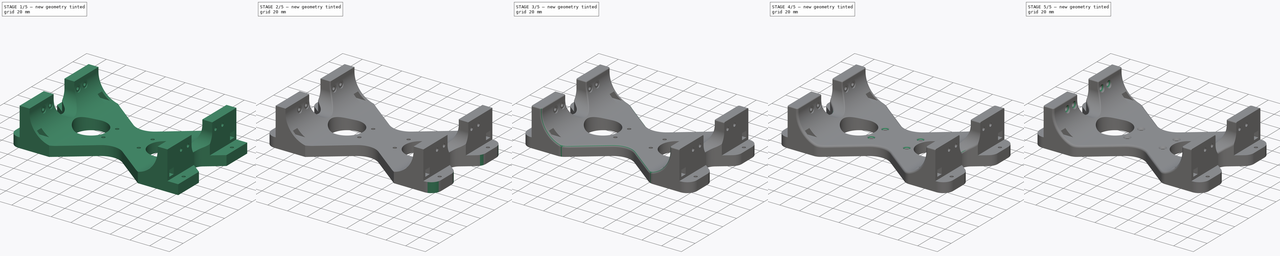
[diagram: build sequence overview — one tinted view per stage of 5, left to right]
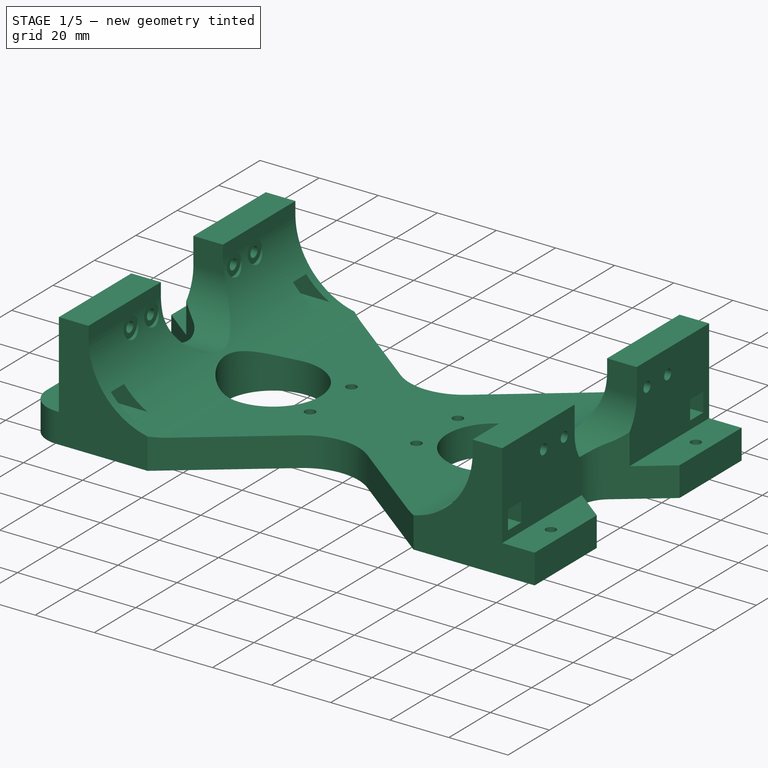
[diagram: stage 1 of 5 — iso view after this stage's code; geometry added in this stage tinted green]
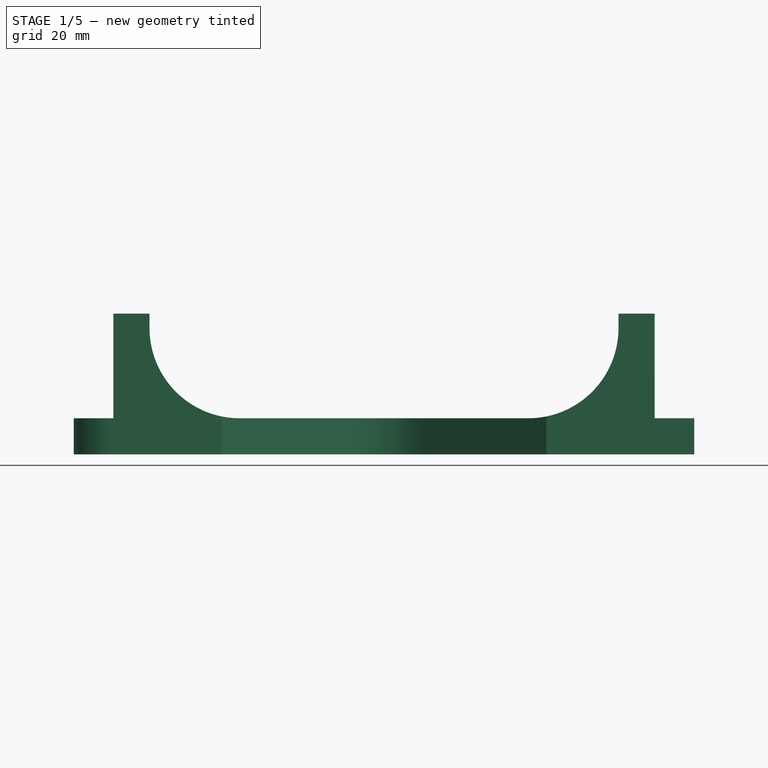
[diagram: stage 1 of 5 — front view after this stage's code; geometry added in this stage tinted green]
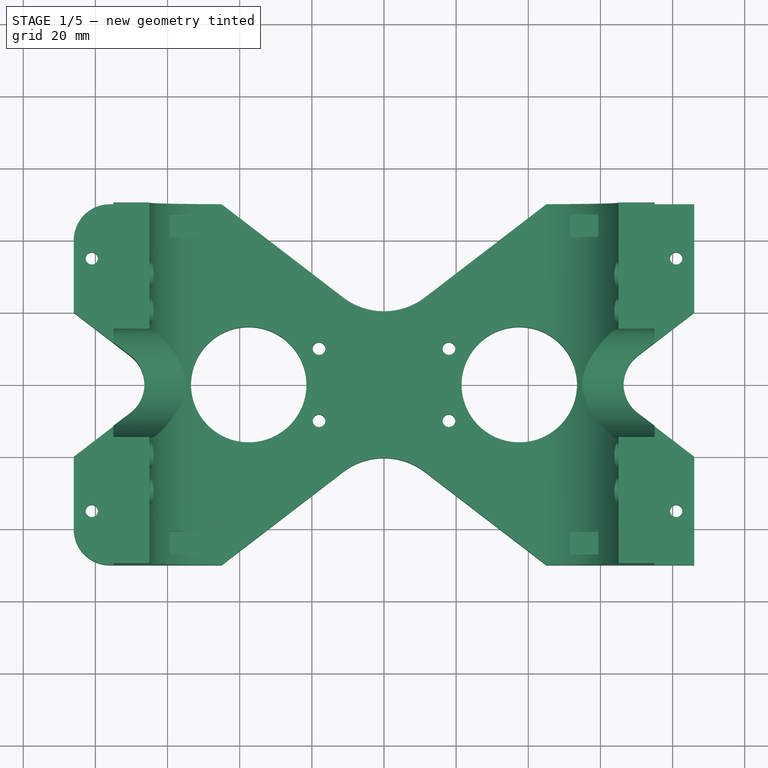
[diagram: stage 1 of 5 — top view after this stage's code; geometry added in this stage tinted green]
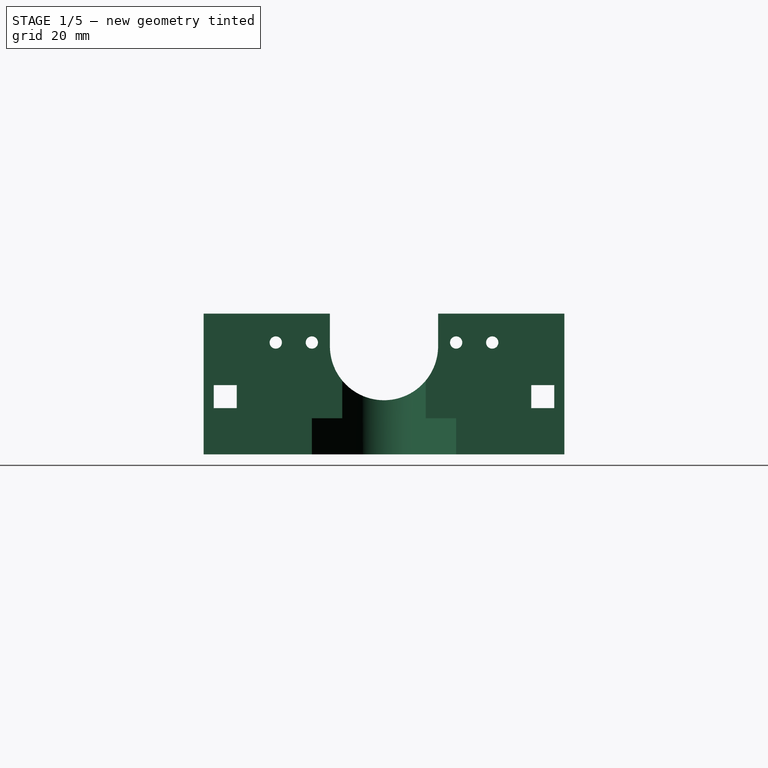
[diagram: stage 1 of 5 — right view after this stage's code; geometry added in this stage tinted green]
FCSTD DOCUMENT  (FreeCAD 0.16R6706 (Git))
Label: Pelvis
License: All rights reserved
LicenseURL: http://en.wikipedia.org/wiki/All_rights_reserved
objects: PartDesign::Fillet×22, PartDesign::Chamfer×16, Sketcher::SketchObject×7, PartDesign::Pocket×6, PartDesign::Pad×1
note: 59 computed .brp shape members not serialized (recipe doc carries the construction recipe); baked Part::Feature solids carry a one-line shape summary decoded from their .brp

FEATURE [Sketcher::SketchObject] Sketch
  sketch-geometry (41):
    g0: LineSegment StartX=-86 StartY=50 StartZ=0 EndX=-45 EndY=50 EndZ=0
    g1: LineSegment StartX=86 StartY=-50 StartZ=0 EndX=45 EndY=-50 EndZ=0
    g2: LineSegment StartX=-86 StartY=-50 StartZ=0 EndX=-86 EndY=-20 EndZ=0
    g3: LineSegment [constr] StartX=-55.2 StartY=35.2 StartZ=0 EndX=-44.8 EndY=35.2 EndZ=0
    g4: LineSegment [constr] StartX=-44.8 StartY=35.2 StartZ=0 EndX=-44.8 EndY=24.8 EndZ=0
    g5: LineSegment [constr] StartX=-44.8 StartY=24.8 StartZ=0 EndX=-55.2 EndY=24.8 EndZ=0
    g6: LineSegment [constr] StartX=-55.2 StartY=24.8 StartZ=0 EndX=-55.2 EndY=35.2 EndZ=0
    g7: LineSegment [constr] StartX=44.8 StartY=35.2 StartZ=0 EndX=55.2 EndY=35.2 EndZ=0
    g8: LineSegment [constr] StartX=55.2 StartY=35.2 StartZ=0 EndX=55.2 EndY=24.8 EndZ=0
    g9: LineSegment [constr] StartX=55.2 StartY=24.8 StartZ=0 EndX=44.8 EndY=24.8 EndZ=0
    g10: LineSegment [constr] StartX=44.8 StartY=24.8 StartZ=0 EndX=44.8 EndY=35.2 EndZ=0
    g11: LineSegment [constr] StartX=-55.2 StartY=-24.8 StartZ=0 EndX=-44.8 EndY=-24.8 EndZ=0
    g12: LineSegment [constr] StartX=-44.8 StartY=-24.8 StartZ=0 EndX=-44.8 EndY=-35.2 EndZ=0
    g13: LineSegment [constr] StartX=-44.8 StartY=-35.2 StartZ=0 EndX=-55.2 EndY=-35.2 EndZ=0
    g14: LineSegment [constr] StartX=-55.2 StartY=-35.2 StartZ=0 EndX=-55.2 EndY=-24.8 EndZ=0
    g15: LineSegment [constr] StartX=44.8 StartY=-24.8 StartZ=0 EndX=55.2 EndY=-24.8 EndZ=0
    g16: LineSegment [constr] StartX=55.2 StartY=-24.8 StartZ=0 EndX=55.2 EndY=-35.2 EndZ=0
    g17: LineSegment [constr] StartX=55.2 StartY=-35.2 StartZ=0 EndX=44.8 EndY=-35.2 EndZ=0
    g18: LineSegment [constr] StartX=44.8 StartY=-35.2 StartZ=0 EndX=44.8 EndY=-24.8 EndZ=0
    g19: GeomPoint [constr] X=50 Y=30 Z=0
    g20: GeomPoint [constr] X=-50 Y=30 Z=0
    g21: GeomPoint [constr] X=-50 Y=-30 Z=0
    g22: LineSegment StartX=-45 StartY=50 StartZ=0 EndX=-11.3641 EndY=24.1901 EndZ=0
    g23: LineSegment StartX=11.3641 StartY=24.1901 StartZ=0 EndX=45 EndY=50 EndZ=0
    g24: LineSegment StartX=-45 StartY=-50 StartZ=0 EndX=-11.3641 EndY=-24.1901 EndZ=0
    g25: LineSegment StartX=11.3641 StartY=-24.1901 StartZ=0 EndX=45 EndY=-50 EndZ=0
    g26: LineSegment StartX=-45 StartY=-50 StartZ=0 EndX=-86 EndY=-50 EndZ=0
    g27: LineSegment StartX=45 StartY=50 StartZ=0 EndX=86 EndY=50 EndZ=0
    g28: LineSegment StartX=-86 StartY=20 StartZ=0 EndX=-70.3614 EndY=8 EndZ=0
    g29: LineSegment StartX=-70.3614 StartY=-8 StartZ=0 EndX=-86 EndY=-20 EndZ=0
    g30: LineSegment StartX=86 StartY=20 StartZ=0 EndX=70.3614 EndY=8 EndZ=0
    g31: LineSegment StartX=70.3614 StartY=-8 StartZ=0 EndX=86 EndY=-20 EndZ=0
    g32: LineSegment StartX=-86 StartY=50 StartZ=0 EndX=-86 EndY=20 EndZ=0
    g33: LineSegment StartX=86 StartY=50 StartZ=0 EndX=86 EndY=20 EndZ=0
    g34: LineSegment StartX=86 StartY=-20 StartZ=0 EndX=86 EndY=-50 EndZ=0
    g35: Circle CenterX=-37.5 CenterY=0 CenterZ=0 NormalX=0 NormalY=0 NormalZ=1 Radius=16
    g36: Circle CenterX=37.5 CenterY=0 CenterZ=0 NormalX=0 NormalY=0 NormalZ=1 Radius=16
    g37: ArcOfCircle CenterX=0 CenterY=39 CenterZ=0 NormalX=0 NormalY=0 NormalZ=1 Radius=18.6675 StartAngle=4.05789 EndAngle=5.36689
    g38: ArcOfCircle CenterX=-76.5 CenterY=0 CenterZ=0 NormalX=0 NormalY=0 NormalZ=1 Radius=10.0838 StartAngle=5.36689 EndAngle=7.19948
    g39: ArcOfCircle CenterX=76.5 CenterY=0 CenterZ=0 NormalX=0 NormalY=0 NormalZ=1 Radius=10.0838 StartAngle=2.2253 EndAngle=4.05789
    g40: ArcOfCircle CenterX=0 CenterY=-39 CenterZ=0 NormalX=0 NormalY=0 NormalZ=1 Radius=18.6675 StartAngle=0.916296 EndAngle=2.2253
  constraints (102):
    c: Coincident(g26,g2)
    c: Horizontal(g0)
    c: Horizontal(g1)
    c: Vertical(g2)
    c: Symmetric(g26,g27,g-1)
    c: DistanceX(g0,g27) = 172
    c: DistanceY(g1,g27) = 100
    c: Coincident(g3,g4)
    c: Coincident(g4,g5)
    c: Coincident(g5,g6)
    c: Coincident(g6,g3)
    c: Horizontal(g3)
    c: Horizontal(g5)
    c: Vertical(g4)
    c: Vertical(g6)
    c: Coincident(g7,g8)
    c: Coincident(g8,g9)
    c: Coincident(g9,g10)
    c: Coincident(g10,g7)
    c: Horizontal(g7)
    c: Horizontal(g9)
    c: Vertical(g8)
    c: Vertical(g10)
    c: Coincident(g11,g12)
    c: Coincident(g12,g13)
    c: Coincident(g13,g14)
    c: Coincident(g14,g11)
    c: Horizontal(g11)
    c: Horizontal(g13)
    c: Vertical(g12)
    c: Vertical(g14)
    c: Coincident(g15,g16)
    c: Coincident(g16,g17)
    c: Coincident(g17,g18)
    c: Coincident(g18,g15)
    c: Horizontal(g15)
    c: Horizontal(g17)
    c: Vertical(g16)
    c: Vertical(g18)
    c: Symmetric(g11,g4,g-1)
    c: Symmetric(g13,g3,g-1)
    c: Equal(g11,g12)
    c: Symmetric(g9,g15,g-1)
    c: Symmetric(g16,g7,g-1)
    c: Equal(g15,g18)
    c: Equal(g15,g11)
    c: Symmetric(g9,g4,g-2)
    c: Symmetric(g9,g7,g19)
    c: DistanceY(g12,g12) = 10.4
    c: Symmetric(g3,g5,g20)
    c: Symmetric(g13,g11,g21)
    c: DistanceX(g20,g19) = 100
    c: DistanceY(g21,g20) = 60
    c: Coincident(g1,g25)
    c: Coincident(g26,g24)
    c: Tangent(g1,g26)
    c: Coincident(g0,g22)
    c: Coincident(g27,g23)
    c: Tangent(g0,g27)
    c: Symmetric(g0,g24,g-1)
    c: Symmetric(g24,g1,g-2)
    c: Symmetric(g0,g23,g-2)
    c: DistanceX(g24,g1) = 90
    c: Coincident(g2,g29)
    c: Coincident(g32,g0)
    c: Coincident(g28,g32)
    c: Coincident(g33,g27)
    c: Coincident(g33,g30)
    c: Vertical(g33)
    c: Coincident(g34,g31)
    c: Coincident(g34,g1)
    c: Vertical(g34)
    c: Symmetric(g31,g30,g-1)
    c: Vertical(g32)
    c: Symmetric(g28,g2,g-1)
    c: Symmetric(g30,g28,g-2)
    c: Parallel(g22,g28)
    c: DistanceY(g2,g28) = 40
    c: PointOnObject(g35,g-1)
    c: PointOnObject(g36,g-1)
    c: Radius(g35) = 16
    c: Equal(g35,g36)
    c: Symmetric(g35,g36,g-1)
    c: DistanceX(g35,g36) = 75
    c: Tangent(g23,g37) = -1.5708
    c: Tangent(g22,g37) = -1.5708
    c: Tangent(g28,g38) = 1.5708
    c: Tangent(g29,g38) = 1.5708
    c: Tangent(g30,g39) = -1.5708
    c: Tangent(g31,g39) = -1.5708
    c: Tangent(g25,g40) = 1.5708
    c: Tangent(g24,g40) = 1.5708
    c: Symmetric(g40,g37,g-1)
    c: Symmetric(g39,g38,g-2)
    c: Symmetric(g29,g28,g-1)
    c: Symmetric(g22,g23,g-2)
    c: DistanceX(g38,g39) = 153
    c: DistanceY(g40,g37) = 78
    c: DistanceY(g29,g28) = 16
    c: Symmetric(g31,g29,g-2)
    c: Symmetric(g30,g28,g-2)
    c: Symmetric(g23,g25,g-1)
FEATURE [PartDesign::Pad] Pad
  Length = 39
  Length2 = 100
  Sketch = -> Sketch
  Type = 0
FEATURE [Sketcher::SketchObject] Sketch001
  Placement = pos=(-86,0,0) rot=(0.57735,-0.57735,-0.57735;2.0944rad)
  Support = -> Pad [Face1]
  sketch-geometry (19):
    g0: LineSegment StartX=-47.2 StartY=19.2 StartZ=0 EndX=-40.8 EndY=19.2 EndZ=0
    g1: LineSegment StartX=-40.8 StartY=19.2 StartZ=0 EndX=-40.8 EndY=12.8 EndZ=0
    g2: LineSegment StartX=-40.8 StartY=12.8 StartZ=0 EndX=-47.2 EndY=12.8 EndZ=0
    g3: LineSegment StartX=-47.2 StartY=12.8 StartZ=0 EndX=-47.2 EndY=19.2 EndZ=0
    g4: LineSegment StartX=40.8 StartY=19.2 StartZ=0 EndX=47.2 EndY=19.2 EndZ=0
    g5: LineSegment StartX=47.2 StartY=19.2 StartZ=0 EndX=47.2 EndY=12.8 EndZ=0
    g6: LineSegment StartX=47.2 StartY=12.8 StartZ=0 EndX=40.8 EndY=12.8 EndZ=0
    g7: LineSegment StartX=40.8 StartY=12.8 StartZ=0 EndX=40.8 EndY=19.2 EndZ=0
    g8: GeomPoint [constr] X=-44 Y=16 Z=0
    g9: GeomPoint [constr] X=44 Y=16 Z=0
    g10: Circle CenterX=-30 CenterY=31 CenterZ=0 NormalX=0 NormalY=0 NormalZ=1 Radius=1.7
    g11: Circle CenterX=30 CenterY=31 CenterZ=0 NormalX=0 NormalY=0 NormalZ=1 Radius=1.7
    g12: Circle CenterX=20 CenterY=31 CenterZ=0 NormalX=0 NormalY=0 NormalZ=1 Radius=1.7
    g13: Circle CenterX=-20 CenterY=31 CenterZ=0 NormalX=0 NormalY=0 NormalZ=1 Radius=1.7
    g14: LineSegment [constr] StartX=-30 StartY=31 StartZ=0 EndX=30 EndY=31 EndZ=0
    g15: ArcOfCircle CenterX=0 CenterY=60 CenterZ=0 NormalX=0 NormalY=0 NormalZ=1 Radius=15 StartAngle=0 EndAngle=3.14159
    g16: ArcOfCircle CenterX=0 CenterY=30 CenterZ=0 NormalX=0 NormalY=0 NormalZ=1 Radius=15 StartAngle=3.14159 EndAngle=6.28319
    g17: LineSegment StartX=-15 StartY=60 StartZ=0 EndX=-15 EndY=30 EndZ=0
    g18: LineSegment StartX=15 StartY=60 StartZ=0 EndX=15 EndY=30 EndZ=0
  constraints (48):
    c: Coincident(g0,g1)
    c: Coincident(g1,g2)
    c: Coincident(g2,g3)
    c: Coincident(g3,g0)
    c: Horizontal(g0)
    c: Horizontal(g2)
    c: Vertical(g1)
    c: Vertical(g3)
    c: Coincident(g4,g5)
    c: Coincident(g5,g6)
    c: Coincident(g6,g7)
    c: Coincident(g7,g4)
    c: Horizontal(g4)
    c: Horizontal(g6)
    c: Vertical(g5)
    c: Vertical(g7)
    c: Symmetric(g4,g0,g-2)
    c: Symmetric(g6,g1,g-2)
    c: Equal(g7,g4)
    c: DistanceY(g5,g5) = 6.4
    c: Symmetric(g2,g0,g8)
    c: Symmetric(g4,g6,g9)
    c: DistanceX(g8,g9) = 88
    c: DistanceY(g-1,g8) = 16
    c: Radius(g10) = 1.7
    c: Equal(g10,g13)
    c: Equal(g10,g12)
    c: Equal(g10,g11)
    c: Coincident(g14,g11)
    c: Horizontal(g14)
    c: PointOnObject(g12,g14)
    c: PointOnObject(g13,g14)
    c: Coincident(g10,g14)
    c: Symmetric(g13,g12,g-2)
    c: DistanceX(g13,g12) = 40
    c: DistanceX(g10,g11) = 60
    c: Symmetric(g10,g11,g-2)
    c: DistanceY(g8,g10) = 15
    c: Tangent(g15,g18) = 1.5708
    c: Tangent(g15,g17) = -1.5708
    c: Tangent(g17,g16) = -1.5708
    c: Tangent(g18,g16) = 1.5708
    c: Vertical(g17)
    c: Equal(g15,g16)
    c: PointOnObject(g16,g-2)
    c: DistanceY(g-1,g16) = 30
    c: DistanceX(g16,g16) = 30
    c: DistanceY(g16,g15) = 30
FEATURE [PartDesign::Pocket] Pocket
  Length = 5
  Sketch = -> Sketch001
  Type = 1
FEATURE [Sketcher::SketchObject] Sketch002
  Placement = pos=(0,-50,0) rot=(1,0,0;1.5708rad)
  Support = -> Pocket [Face25]
  sketch-geometry (14):
    g0: ArcOfCircle CenterX=-40 CenterY=35 CenterZ=0 NormalX=0 NormalY=0 NormalZ=1 Radius=25 StartAngle=3.14159 EndAngle=4.71239
    g1: ArcOfCircle CenterX=40 CenterY=35 CenterZ=0 NormalX=0 NormalY=0 NormalZ=1 Radius=25 StartAngle=4.71239 EndAngle=6.28318
    g2: LineSegment StartX=-40 StartY=10 StartZ=0 EndX=40 EndY=10 EndZ=0
    g3: LineSegment StartX=-65 StartY=35 StartZ=0 EndX=-65 EndY=40 EndZ=0
    g4: LineSegment StartX=-65 StartY=40 StartZ=0 EndX=65 EndY=40 EndZ=0
    g5: LineSegment StartX=65 StartY=40 StartZ=0 EndX=65 EndY=34.9999 EndZ=0
    g6: LineSegment StartX=-100 StartY=45 StartZ=0 EndX=-75 EndY=45 EndZ=0
    g7: LineSegment StartX=-75 StartY=45 StartZ=0 EndX=-75 EndY=10 EndZ=0
    g8: LineSegment StartX=-75 StartY=10 StartZ=0 EndX=-100 EndY=10 EndZ=0
    g9: LineSegment StartX=-100 StartY=10 StartZ=0 EndX=-100 EndY=45 EndZ=0
    g10: LineSegment StartX=75 StartY=45 StartZ=0 EndX=100 EndY=45 EndZ=0
    g11: LineSegment StartX=100 StartY=45 StartZ=0 EndX=100 EndY=10 EndZ=0
    g12: LineSegment StartX=100 StartY=10 StartZ=0 EndX=75 EndY=10 EndZ=0
    g13: LineSegment StartX=75 StartY=10 StartZ=0 EndX=75 EndY=45 EndZ=0
  constraints (39):
    c: Tangent(g0,g2) = -1.5708
    c: Tangent(g2,g1) = -1.5708
    c: Horizontal(g2)
    c: Equal(g0,g1)
    c: DistanceY(g-1,g1) = 10
    c: Symmetric(g0,g1,g-2)
    c: Tangent(g0,g3) = 1.5708
    c: Coincident(g3,g4)
    c: Horizontal(g4)
    c: Coincident(g4,g5)
    c: Coincident(g5,g1)
    c: Vertical(g3)
    c: Vertical(g5)
    c: DistanceX(g4,g4) = 130
    c: Tangent(g1,g5)
    c: DistanceY(g-1,g3) = 40
    c: DistanceY(g0,g3) = 5
    c: Coincident(g6,g7)
    c: Coincident(g7,g8)
    c: Coincident(g8,g9)
    c: Coincident(g9,g6)
    c: Horizontal(g6)
    c: Horizontal(g8)
    c: Vertical(g7)
    c: Vertical(g9)
    c: Coincident(g10,g11)
    c: Coincident(g11,g12)
    c: Coincident(g12,g13)
    c: Coincident(g13,g10)
    c: Horizontal(g10)
    c: Horizontal(g12)
    c: Vertical(g11)
    c: Vertical(g13)
    c: Symmetric(g7,g12,g-2)
    c: Symmetric(g6,g10,g-2)
    c: DistanceY(g-1,g7) = 10
    c: DistanceX(g6,g0) = 10
    c: DistanceY(g8,g6) = 35
    c: DistanceX(g6,g6) = 25
FEATURE [PartDesign::Pocket] Pocket001
  Length = 100
  Sketch = -> Sketch002
  Type = 0
FEATURE [Sketcher::SketchObject] Sketch003
  Placement = pos=(0,0,10) rot=(0,0,1;0rad)
  Support = -> Pocket001 [Face30]
  sketch-geometry (8):
    g0: LineSegment [constr] StartX=-81 StartY=35 StartZ=0 EndX=81 EndY=35 EndZ=0
    g1: LineSegment [constr] StartX=81 StartY=35 StartZ=0 EndX=81 EndY=-35 EndZ=0
    g2: LineSegment [constr] StartX=81 StartY=-35 StartZ=0 EndX=-81 EndY=-35 EndZ=0
    g3: LineSegment [constr] StartX=-81 StartY=-35 StartZ=0 EndX=-81 EndY=35 EndZ=0
    g4: Circle CenterX=-81 CenterY=35 CenterZ=0 NormalX=0 NormalY=0 NormalZ=1 Radius=1.7
    g5: Circle CenterX=-81 CenterY=-35 CenterZ=0 NormalX=0 NormalY=0 NormalZ=1 Radius=1.7
    g6: Circle CenterX=81 CenterY=35 CenterZ=0 NormalX=0 NormalY=0 NormalZ=1 Radius=1.7
    g7: Circle CenterX=81 CenterY=-35 CenterZ=0 NormalX=0 NormalY=0 NormalZ=1 Radius=1.7
  constraints (19):
    c: Coincident(g0,g1)
    c: Coincident(g1,g2)
    c: Coincident(g2,g3)
    c: Coincident(g3,g0)
    c: Horizontal(g0)
    c: Horizontal(g2)
    c: Vertical(g1)
    c: Vertical(g3)
    c: Coincident(g4,g0)
    c: Coincident(g6,g0)
    c: Coincident(g7,g1)
    c: Coincident(g5,g2)
    c: Symmetric(g0,g1,g-1)
    c: Radius(g4) = 1.7
    c: Equal(g4,g5)
    c: Equal(g4,g6)
    c: Equal(g4,g7)
    c: DistanceY(g2,g0) = 70
    c: DistanceX(g0,g0) = 162
FEATURE [PartDesign::Pocket] Pocket002
  Length = 5
  Sketch = -> Sketch003
  Type = 1
FEATURE [Sketcher::SketchObject] Sketch004
  Placement = pos=(0,0,10) rot=(0,0,1;0rad)
  Support = -> Pocket002 [Face34]
  sketch-geometry (8):
    g0: LineSegment [constr] StartX=-18 StartY=10 StartZ=0 EndX=18 EndY=10 EndZ=0
    g1: LineSegment [constr] StartX=18 StartY=10 StartZ=0 EndX=18 EndY=-10 EndZ=0
    g2: LineSegment [constr] StartX=18 StartY=-10 StartZ=0 EndX=-18 EndY=-10 EndZ=0
    g3: LineSegment [constr] StartX=-18 StartY=-10 StartZ=0 EndX=-18 EndY=10 EndZ=0
    g4: Circle CenterX=-18 CenterY=10 CenterZ=0 NormalX=0 NormalY=0 NormalZ=1 Radius=1.75
    g5: Circle CenterX=18 CenterY=10 CenterZ=0 NormalX=0 NormalY=0 NormalZ=1 Radius=1.75
    g6: Circle CenterX=-18 CenterY=-10 CenterZ=0 NormalX=0 NormalY=0 NormalZ=1 Radius=1.75
    g7: Circle CenterX=18 CenterY=-10 CenterZ=0 NormalX=0 NormalY=0 NormalZ=1 Radius=1.75
  constraints (19):
    c: Coincident(g0,g1)
    c: Coincident(g1,g2)
    c: Coincident(g2,g3)
    c: Coincident(g3,g0)
    c: Horizontal(g0)
    c: Horizontal(g2)
    c: Vertical(g1)
    c: Vertical(g3)
    c: Symmetric(g0,g1,g-1)
    c: Coincident(g6,g2)
    c: Coincident(g7,g1)
    c: Coincident(g4,g0)
    c: Coincident(g5,g0)
    c: DistanceX(g0,g0) = 36
    c: DistanceY(g2,g0) = 20
    c: Radius(g4) = 1.75
    c: Equal(g4,g6)
    c: Equal(g4,g5)
    c: Equal(g4,g7)
FEATURE [PartDesign::Pocket] Pocket003
  Length = 5
  Sketch = -> Sketch004
  Type = 1
FEATURE [Sketcher::SketchObject] Sketch006
  Placement = pos=(65,0,0) rot=(0.57735,-0.57735,-0.57735;2.0944rad)
  Support = -> Pocket003 [Face45]
  sketch-geometry (5):
    g0: Circle CenterX=-30 CenterY=31 CenterZ=0 NormalX=0 NormalY=0 NormalZ=1 Radius=3.5
    g1: Circle CenterX=-20 CenterY=31 CenterZ=0 NormalX=0 NormalY=0 NormalZ=1 Radius=3.5
    g2: Circle CenterX=20 CenterY=31 CenterZ=0 NormalX=0 NormalY=0 NormalZ=1 Radius=3.5
    g3: Circle CenterX=30 CenterY=31 CenterZ=0 NormalX=0 NormalY=0 NormalZ=1 Radius=3.5
    g4: LineSegment [constr] StartX=-30 StartY=31 StartZ=0 EndX=-20 EndY=31 EndZ=0
  constraints (12):
    c: Coincident(g4,g0)
    c: Coincident(g4,g1)
    c: Horizontal(g4)
    c: Symmetric(g1,g2,g-2)
    c: Symmetric(g0,g3,g-2)
    c: DistanceX(g0,g1) = 10
    c: Radius(g0) = 3.5
    c: Equal(g0,g1)
    c: Equal(g0,g2)
    c: Equal(g0,g3)
    c: DistanceY(g-1,g1) = 31
    c: DistanceX(g1,g2) = 40
FEATURE [PartDesign::Pocket] Pocket005
  Length = 5
  Reversed = true
  Sketch = -> Sketch006
  Type = 0
FEATURE [Sketcher::SketchObject] Sketch007
  Placement = pos=(-65,0,0) rot=(0.57735,0.57735,0.57735;2.0944rad)
  Support = -> Pocket005 [Face47]
  sketch-geometry (5):
    g0: Circle CenterX=-30 CenterY=31 CenterZ=0 NormalX=0 NormalY=0 NormalZ=1 Radius=3.5
    g1: Circle CenterX=-20 CenterY=31 CenterZ=0 NormalX=0 NormalY=0 NormalZ=1 Radius=3.5
    g2: Circle CenterX=20 CenterY=31 CenterZ=0 NormalX=0 NormalY=0 NormalZ=1 Radius=3.5
    g3: Circle CenterX=30 CenterY=31 CenterZ=0 NormalX=0 NormalY=0 NormalZ=1 Radius=3.5
    g4: LineSegment [constr] StartX=-30 StartY=31 StartZ=0 EndX=-20 EndY=31 EndZ=0
  constraints (12):
    c: Coincident(g4,g0)
    c: Coincident(g4,g1)
    c: Horizontal(g4)
    c: Symmetric(g1,g2,g-2)
    c: Symmetric(g0,g3,g-2)
    c: DistanceX(g0,g1) = 10
    c: Radius(g0) = 3.5
    c: Equal(g0,g1)
    c: Equal(g0,g2)
    c: Equal(g0,g3)
    c: DistanceY(g-1,g1) = 31
    c: DistanceX(g1,g2) = 40
FEATURE [PartDesign::Pocket] Pocket006
  Length = 5
  Reversed = true
  Sketch = -> Sketch007
  Type = 0
FEATURE [PartDesign::Fillet] Fillet
  Base = -> Pocket006 [Edge62]
  Radius = 10
FEATURE [PartDesign::Fillet] Fillet001
  Base = -> Fillet [Edge60]
  Radius = 10
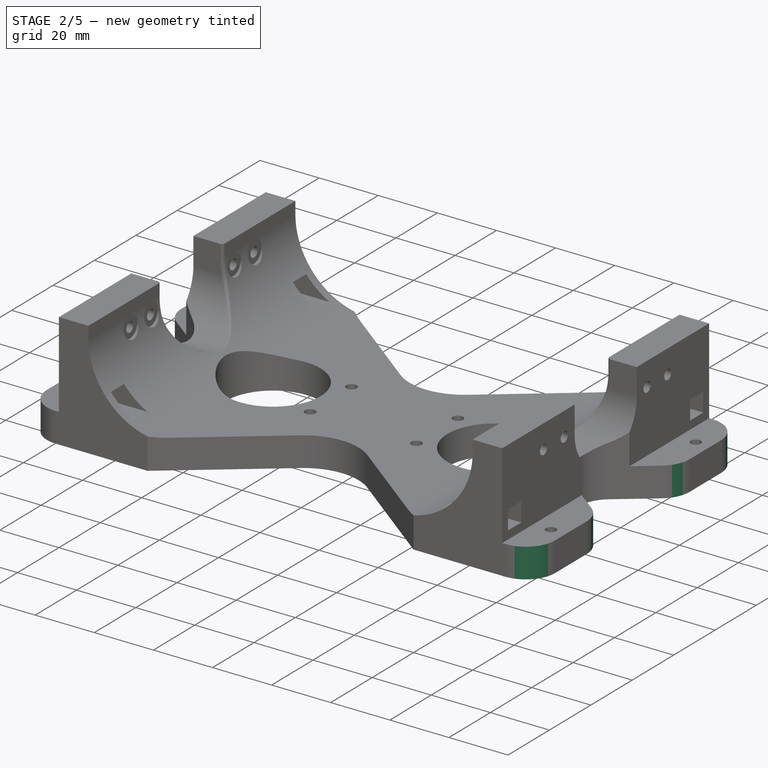
[diagram: stage 2 of 5 — iso view after this stage's code; geometry added in this stage tinted green]
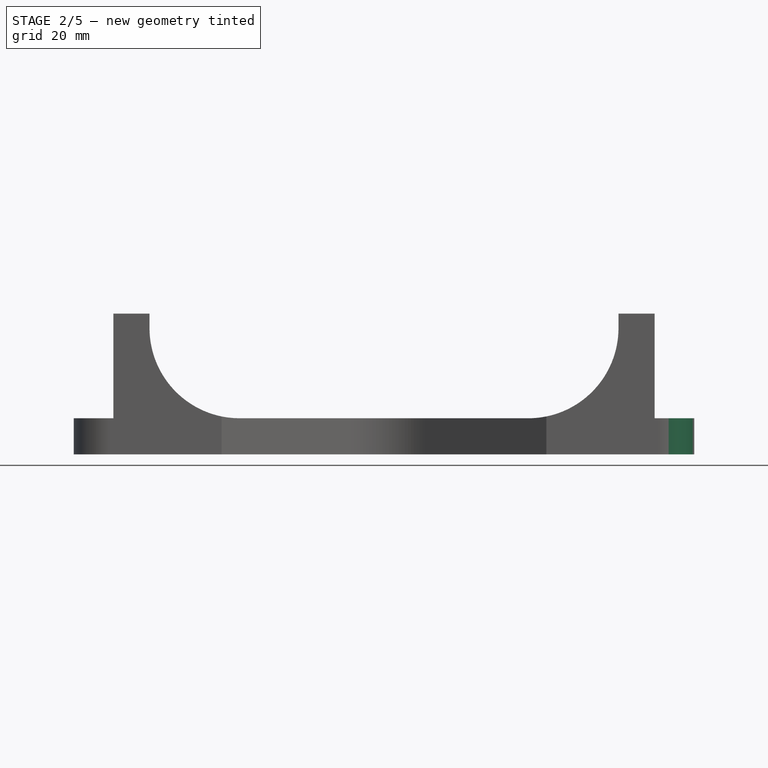
[diagram: stage 2 of 5 — front view after this stage's code; geometry added in this stage tinted green]
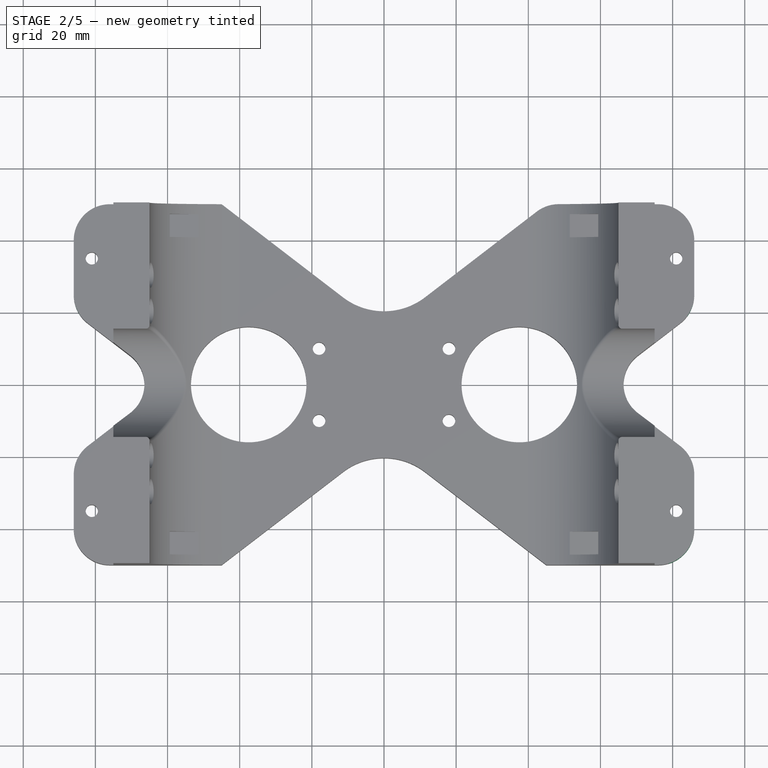
[diagram: stage 2 of 5 — top view after this stage's code; geometry added in this stage tinted green]
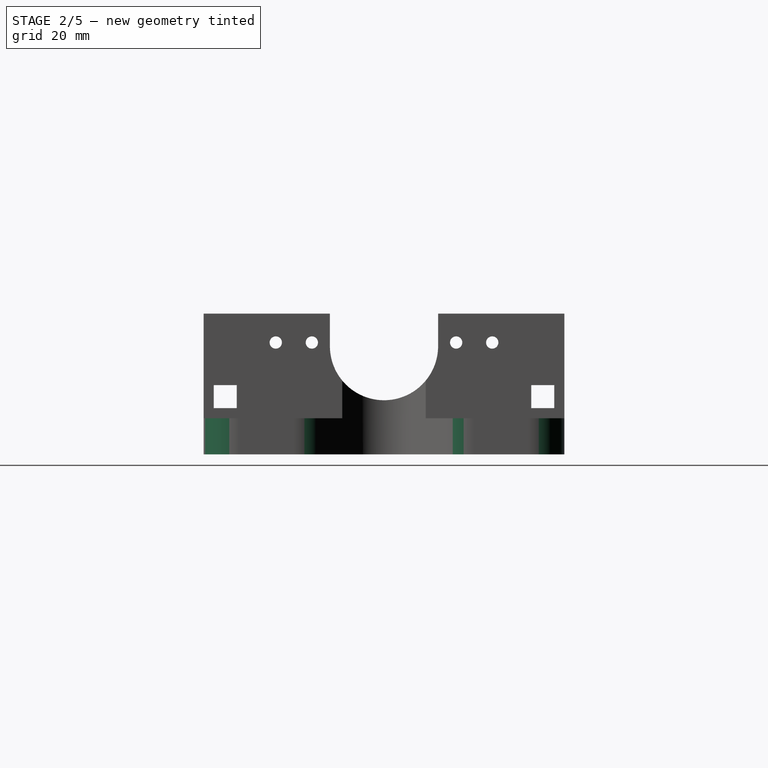
[diagram: stage 2 of 5 — right view after this stage's code; geometry added in this stage tinted green]
FEATURE [PartDesign::Fillet] Fillet002
  Base = -> Fillet001 [Edge104]
  Radius = 10
FEATURE [PartDesign::Fillet] Fillet003
  Base = -> Fillet002 [Edge72]
  Radius = 10
FEATURE [PartDesign::Fillet] Fillet004
  Base = -> Fillet003 [Edge105]
  Radius = 10
FEATURE [PartDesign::Fillet] Fillet005
  Base = -> Fillet004 [Edge51]
  Radius = 10
FEATURE [PartDesign::Fillet] Fillet006
  Base = -> Fillet005 [Edge97]
  Radius = 10
FEATURE [PartDesign::Fillet] Fillet007
  Base = -> Fillet006 [Edge60]
  Radius = 10
FEATURE [PartDesign::Fillet] Fillet008
  Base = -> Fillet007 [Edge151]
  Radius = 1
FEATURE [PartDesign::Fillet] Fillet009
  Base = -> Fillet008 [Edge247]
  Radius = 1
FEATURE [PartDesign::Fillet] Fillet010
  Base = -> Fillet009 [Edge206]
  Radius = 10
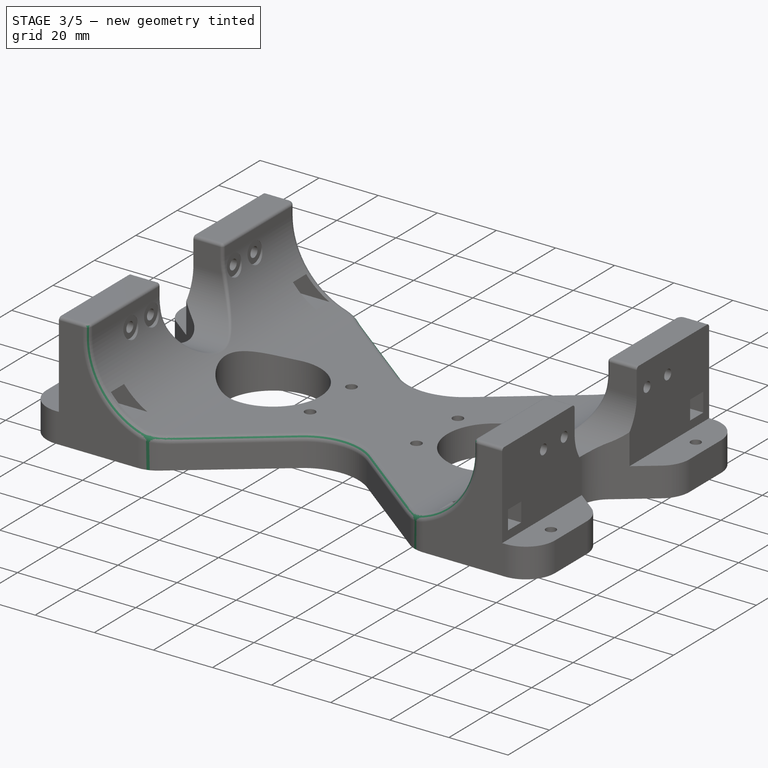
[diagram: stage 3 of 5 — iso view after this stage's code; geometry added in this stage tinted green]
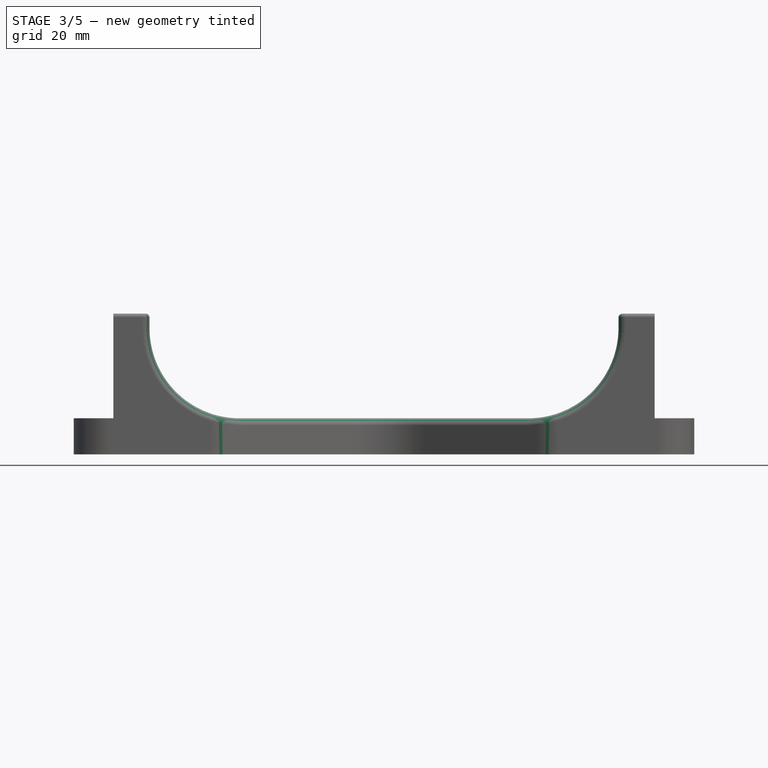
[diagram: stage 3 of 5 — front view after this stage's code; geometry added in this stage tinted green]
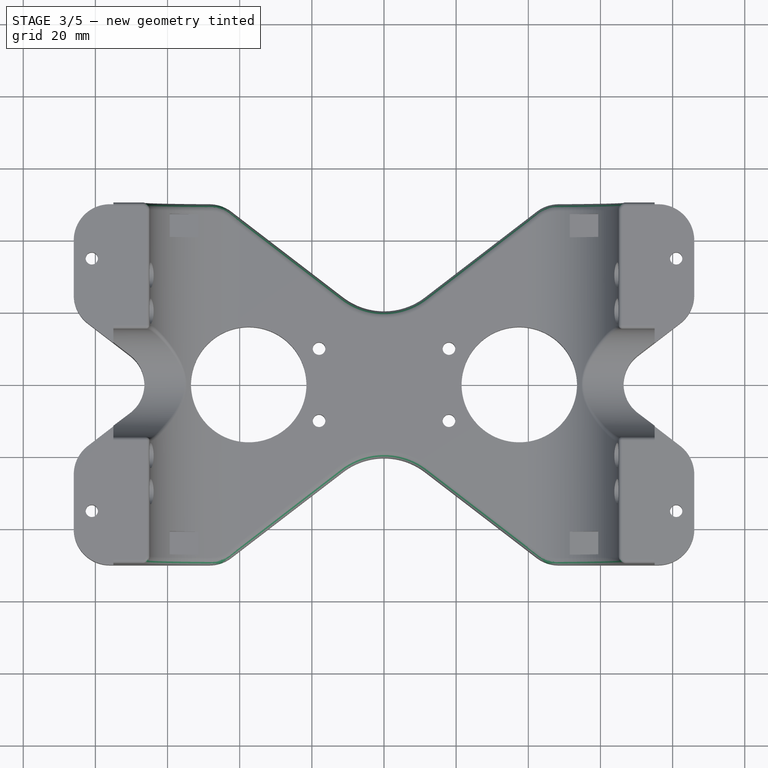
[diagram: stage 3 of 5 — top view after this stage's code; geometry added in this stage tinted green]
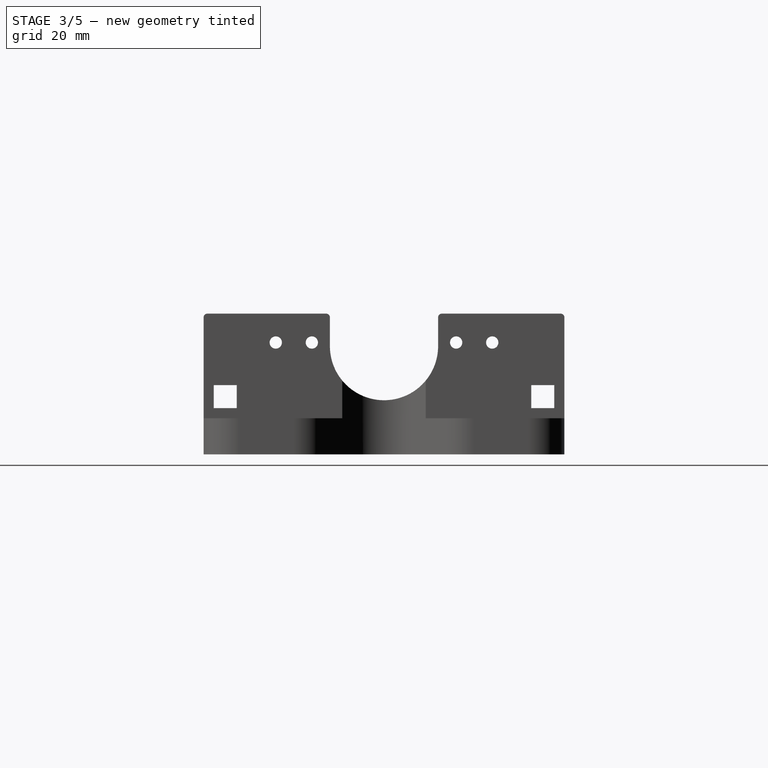
[diagram: stage 3 of 5 — right view after this stage's code; geometry added in this stage tinted green]
FEATURE [PartDesign::Fillet] Fillet011
  Base = -> Fillet010 [Edge62]
  Radius = 10
FEATURE [PartDesign::Fillet] Fillet012
  Base = -> Fillet011 [Edge107]
  Radius = 10
FEATURE [PartDesign::Fillet] Fillet013
  Base = -> Fillet012 [Edge62]
  Radius = 10
FEATURE [PartDesign::Fillet] Fillet014
  Base = -> Fillet013 [Edge50]
  Radius = 2
FEATURE [PartDesign::Fillet] Fillet015
  Base = -> Fillet014 [Edge171]
  Radius = 2
FEATURE [PartDesign::Fillet] Fillet016
  Base = -> Fillet015 [Edge40]
  Radius = 1
FEATURE [PartDesign::Fillet] Fillet017
  Base = -> Fillet016 [Edge94]
  Radius = 1
FEATURE [PartDesign::Fillet] Fillet018
  Base = -> Fillet017 [Edge355]
  Radius = 1
FEATURE [PartDesign::Fillet] Fillet019
  Base = -> Fillet018 [Edge242]
  Radius = 1
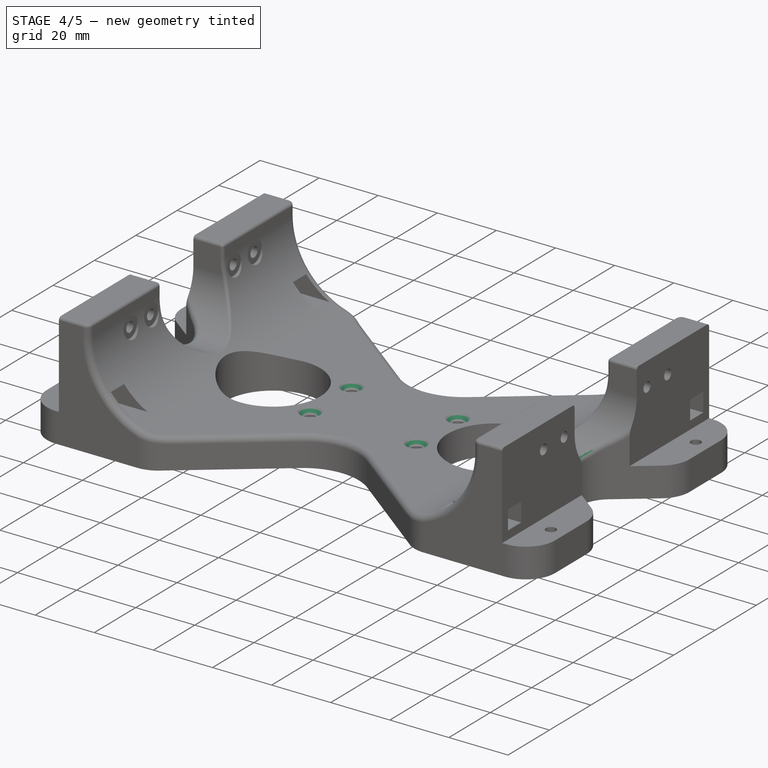
[diagram: stage 4 of 5 — iso view after this stage's code; geometry added in this stage tinted green]
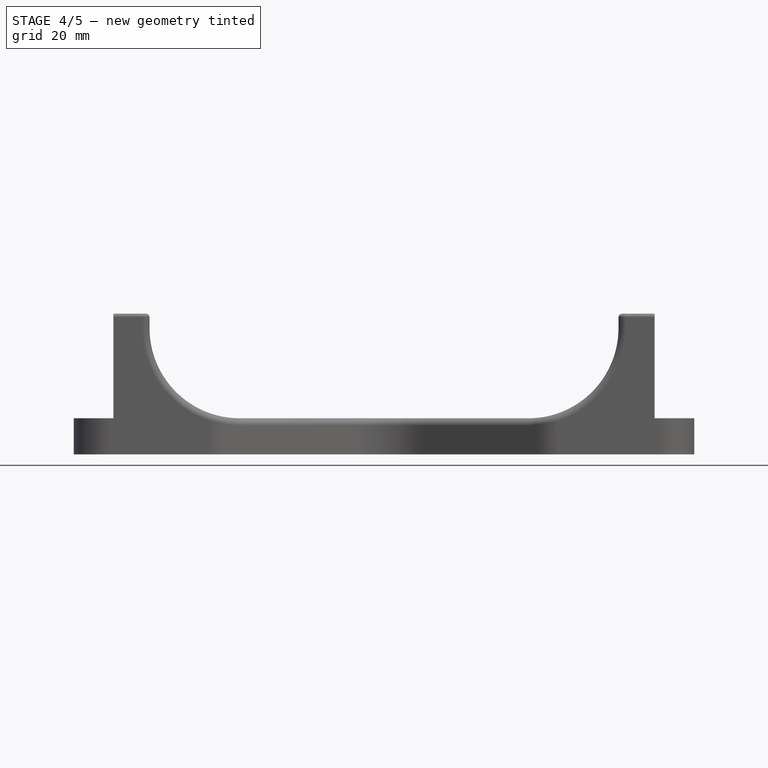
[diagram: stage 4 of 5 — front view after this stage's code; geometry added in this stage tinted green]
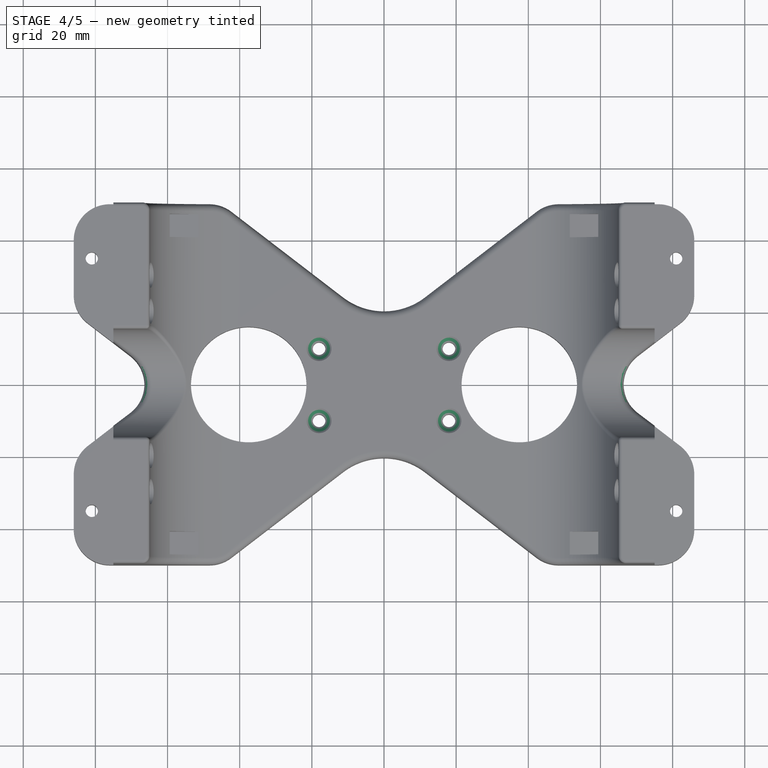
[diagram: stage 4 of 5 — top view after this stage's code; geometry added in this stage tinted green]
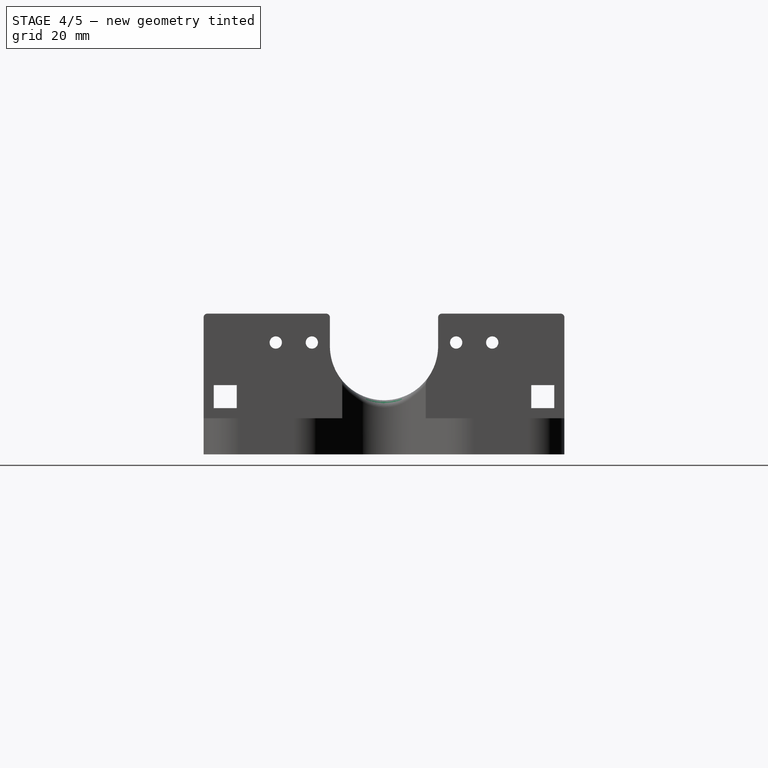
[diagram: stage 4 of 5 — right view after this stage's code; geometry added in this stage tinted green]
FEATURE [PartDesign::Fillet] Fillet020
  Base = -> Fillet019 [Edge132]
  Radius = 2
FEATURE [PartDesign::Fillet] Fillet021
  Base = -> Fillet020 [Edge236]
  Radius = 2
FEATURE [PartDesign::Chamfer] Chamfer
  Base = -> Fillet021 [Edge158]
  Size = 1.7
FEATURE [PartDesign::Chamfer] Chamfer001
  Base = -> Chamfer [Edge62]
  Size = 1.7
FEATURE [PartDesign::Chamfer] Chamfer002
  Base = -> Chamfer001 [Edge16]
  Size = 1.7
FEATURE [PartDesign::Chamfer] Chamfer003
  Base = -> Chamfer002 [Edge17]
  Size = 1.7
FEATURE [PartDesign::Chamfer] Chamfer004
  Base = -> Chamfer003 [Edge211]
  Size = 1.7
FEATURE [PartDesign::Chamfer] Chamfer005
  Base = -> Chamfer004 [Edge39]
  Size = 1.7
FEATURE [PartDesign::Chamfer] Chamfer006
  Base = -> Chamfer005 [Edge42]
  Size = 1.7
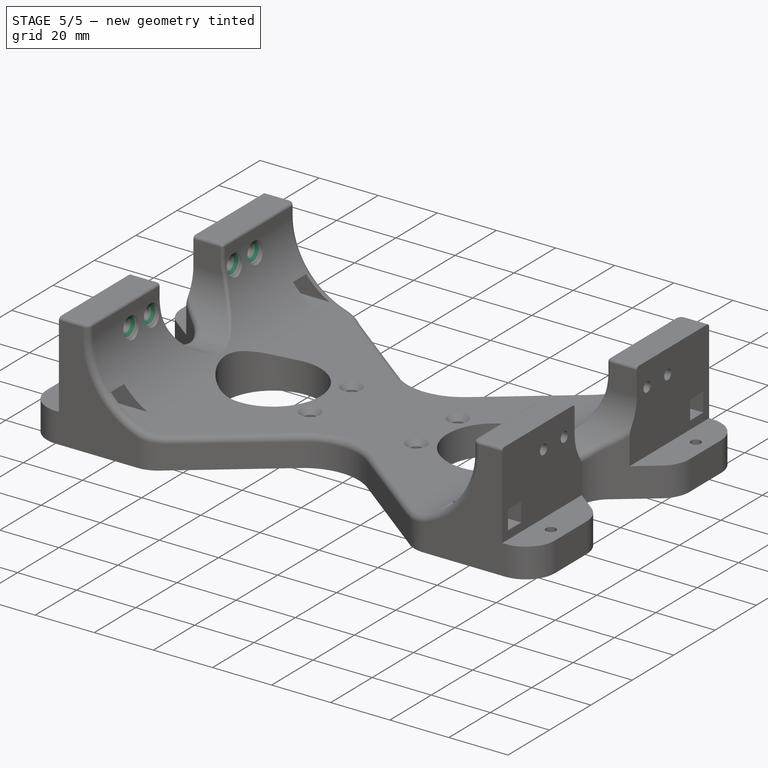
[diagram: stage 5 of 5 — iso view after this stage's code; geometry added in this stage tinted green]
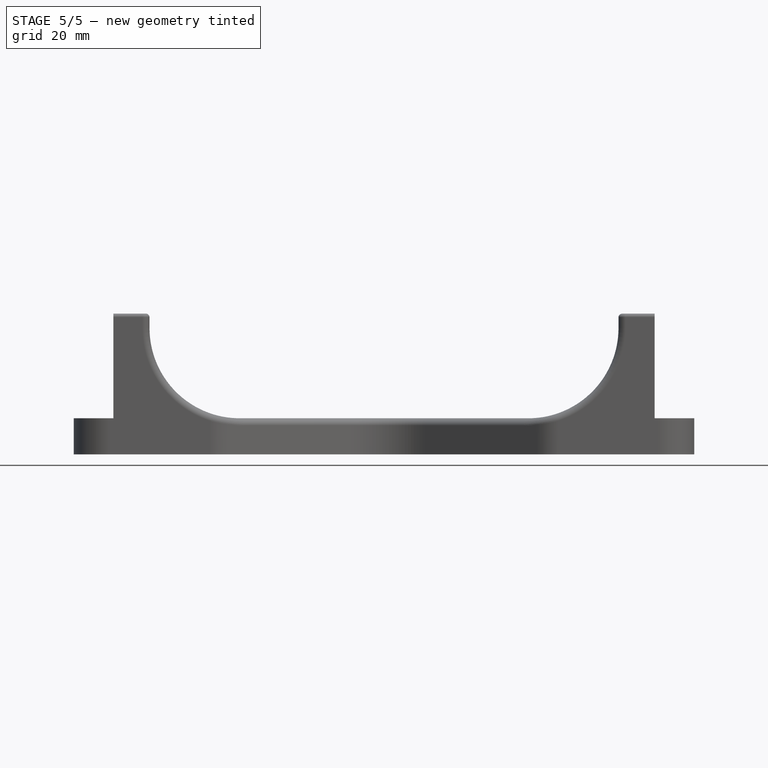
[diagram: stage 5 of 5 — front view after this stage's code; geometry added in this stage tinted green]
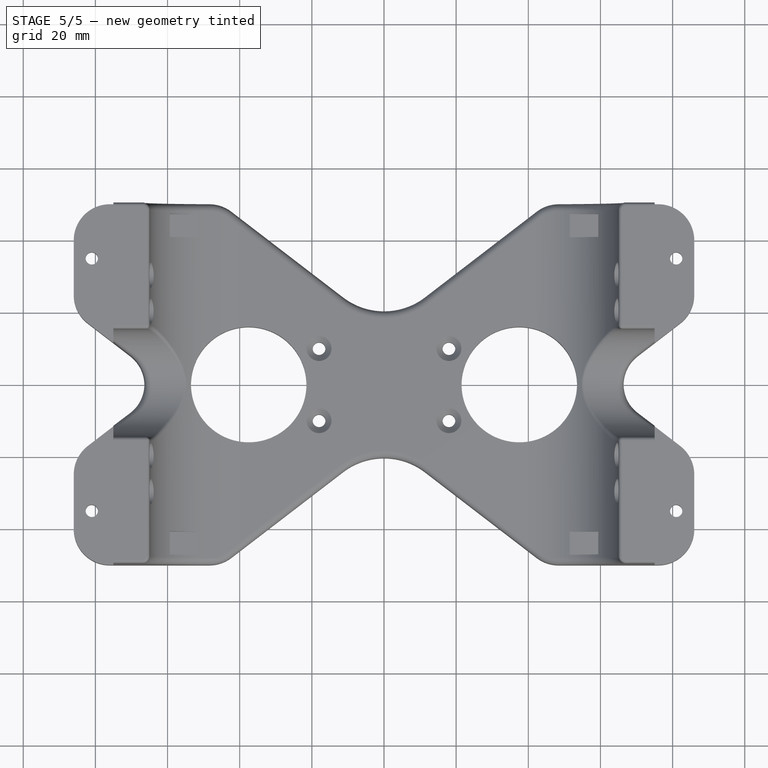
[diagram: stage 5 of 5 — top view after this stage's code; geometry added in this stage tinted green]
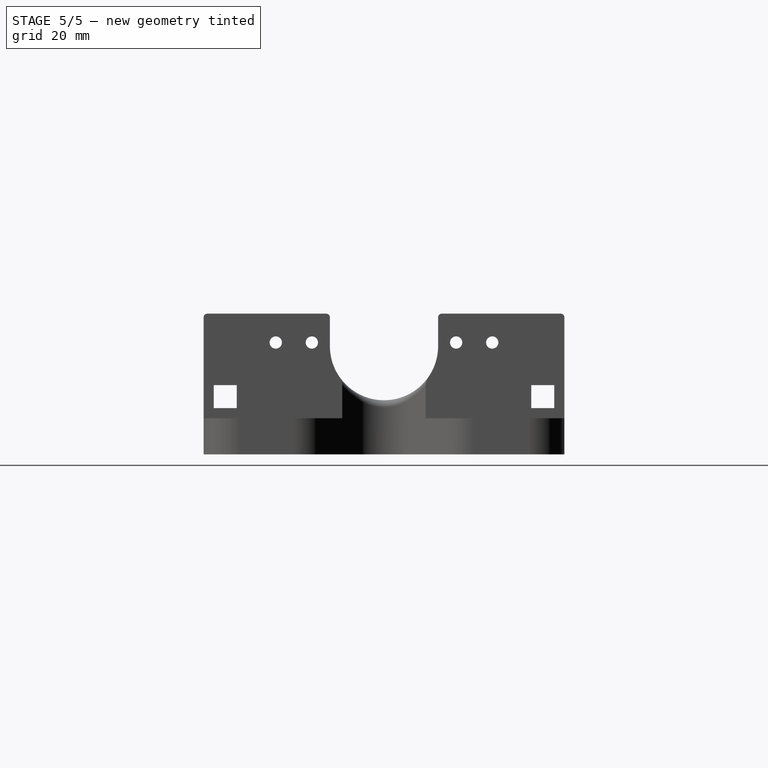
[diagram: stage 5 of 5 — right view after this stage's code; geometry added in this stage tinted green]
FEATURE [PartDesign::Chamfer] Chamfer007
  Base = -> Chamfer006 [Edge42]
  Size = 1.7
FEATURE [PartDesign::Chamfer] Chamfer008
  Base = -> Chamfer007 [Edge389]
  Size = 1.7
FEATURE [PartDesign::Chamfer] Chamfer009
  Base = -> Chamfer008 [Edge55]
  Size = 1.7
FEATURE [PartDesign::Chamfer] Chamfer010
  Base = -> Chamfer009 [Edge285]
  Size = 1.7
FEATURE [PartDesign::Chamfer] Chamfer011
  Base = -> Chamfer010 [Edge55]
  Size = 1.7
FEATURE [PartDesign::Chamfer] Chamfer012
  Base = -> Chamfer011 [Edge447]
  Size = 1.7
FEATURE [PartDesign::Chamfer] Chamfer013
  Base = -> Chamfer012 [Edge54]
  Size = 1.7
FEATURE [PartDesign::Chamfer] Chamfer014
  Base = -> Chamfer013 [Edge202]
  Size = 1.7
FEATURE [PartDesign::Chamfer] Chamfer015
  Base = -> Chamfer014 [Edge54]
  Size = 1.7
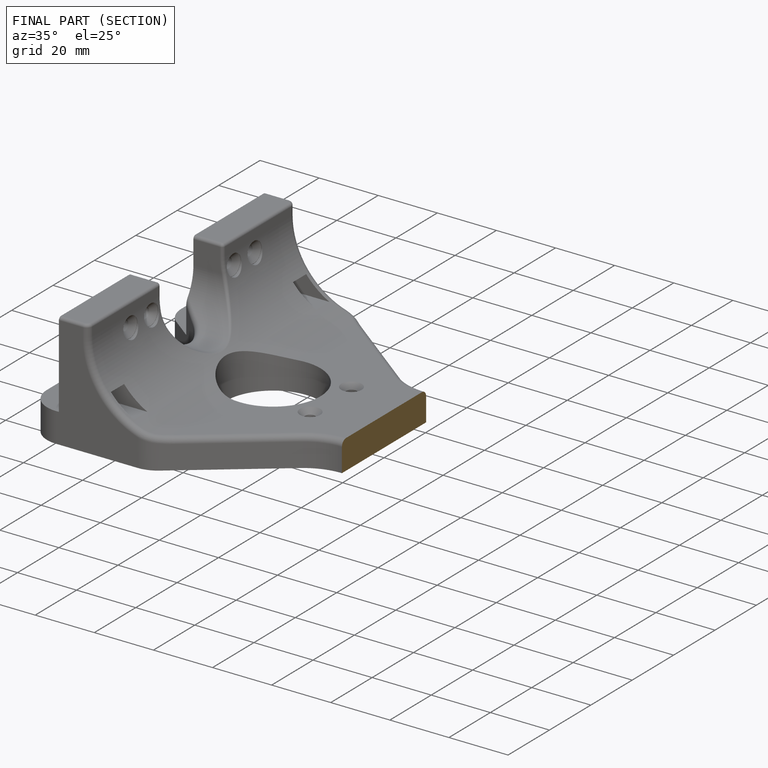
[diagram: finished part — half-section view (interior)]
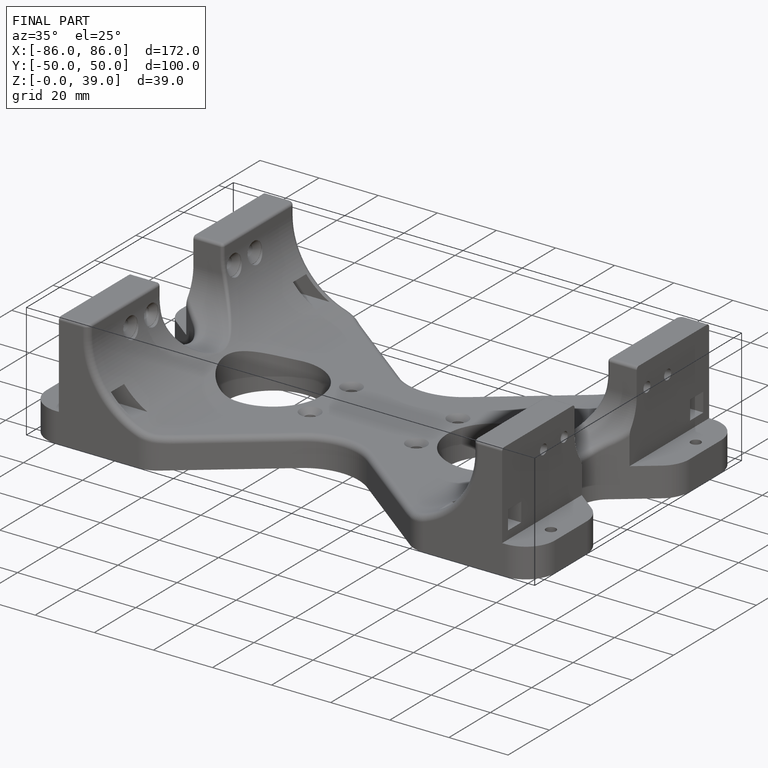
[diagram: finished part — iso view with bounding-box wireframe]
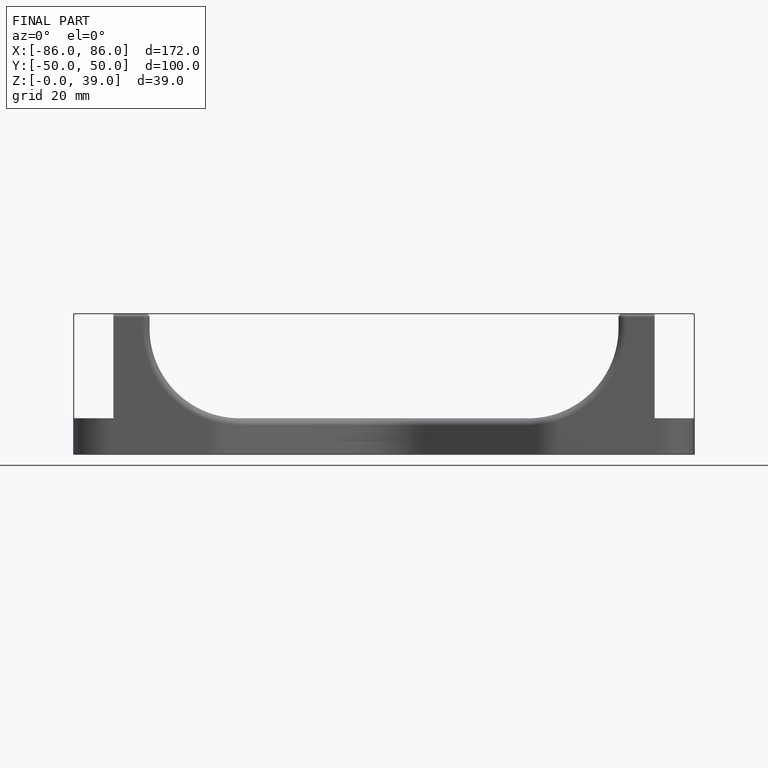
[diagram: finished part — front view with bounding-box wireframe]
